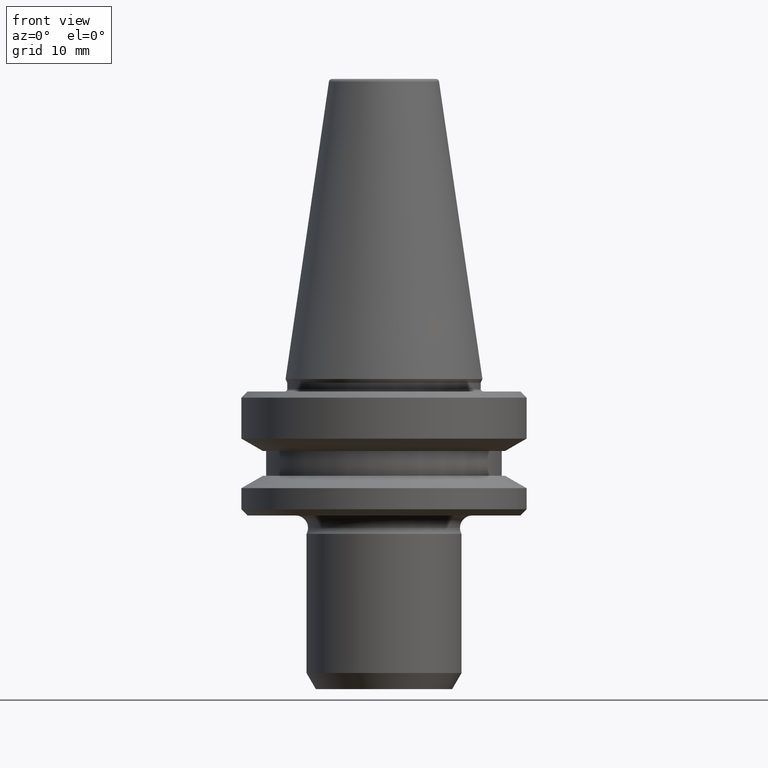
[diagram: clean part render]
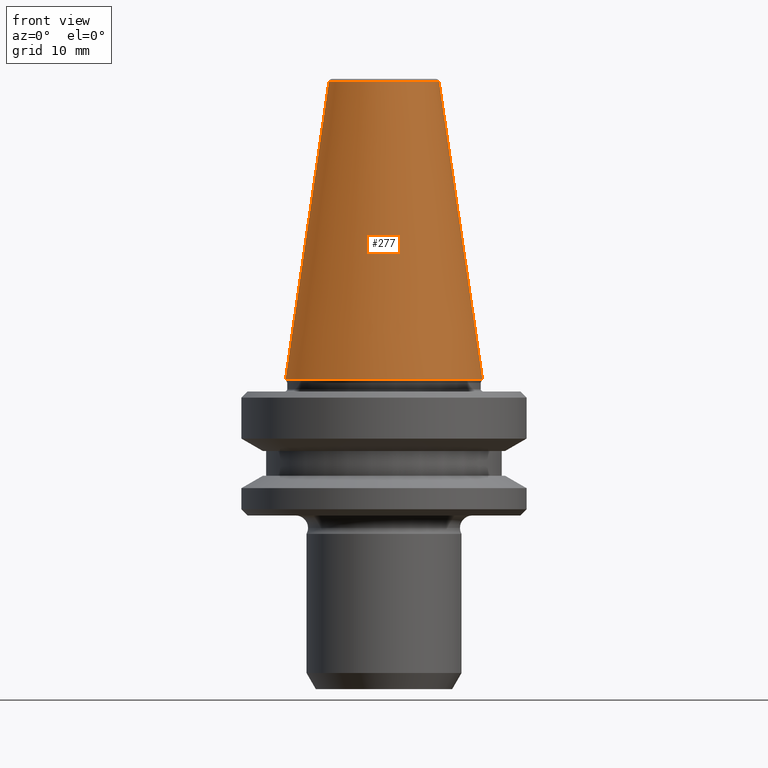
[diagram: same view with one face highlighted and labeled with its STEP entity id]
A machine part, front view. The second image highlights one B-rep face of the part: STEP entity #277.
In plain terms, the highlighted conical surface has half-angle 8.297 deg.
Its self-contained STEP definition (entity closure, byte-faithful):
#2 = DIRECTION ( 'NONE',  ( 1.000000000000000000, 0.0000000000000000000, 0.0000000000000000000 ) ) ;
#10 = EDGE_LOOP ( 'NONE', ( #85, #122, #961, #152 ) ) ;
#39 = VERTEX_POINT ( 'NONE', #145 ) ;
#60 = VERTEX_POINT ( 'NONE', #555 ) ;
#71 = CARTESIAN_POINT ( 'NONE',  ( -15.87499999999997200, 0.0000000000000000000, 1.665334536937734800E-013 ) ) ;
#79 = DIRECTION ( 'NONE',  ( -0.0000000000000000000, -0.0000000000000000000, 1.000000000000000000 ) ) ;
#85 = ORIENTED_EDGE ( 'NONE', *, *, #249, .F. ) ;
#122 = ORIENTED_EDGE ( 'NONE', *, *, #1012, .F. ) ;
#142 = EDGE_CURVE ( 'NONE', #306, #39, #735, .T. ) ;
#145 = CARTESIAN_POINT ( 'NONE',  ( 15.87499999999997200, 0.0000000000000000000, 1.665334536937734800E-013 ) ) ;
#152 = ORIENTED_EDGE ( 'NONE', *, *, #142, .T. ) ;
#180 = EDGE_CURVE ( 'NONE', #60, #306, #765, .T. ) ;
#249 = EDGE_CURVE ( 'NONE', #447, #39, #833, .T. ) ;
#277 = ADVANCED_FACE ( 'NONE', ( #656 ), #958, .T. ) ;
#306 = VERTEX_POINT ( 'NONE', #664 ) ;
#344 = AXIS2_PLACEMENT_3D ( 'NONE', #462, #1019, #941 ) ;
#351 = DIRECTION ( 'NONE',  ( -0.0000000000000000000, -0.0000000000000000000, 1.000000000000000000 ) ) ;
#412 = AXIS2_PLACEMENT_3D ( 'NONE', #742, #79, #476 ) ;
#447 = VERTEX_POINT ( 'NONE', #720 ) ;
#452 = CARTESIAN_POINT ( 'NONE',  ( 0.0000000000000000000, 0.0000000000000000000, 47.97215411344135600 ) ) ;
#462 = CARTESIAN_POINT ( 'NONE',  ( 0.0000000000000000000, 0.0000000000000000000, 1.665334536937734800E-013 ) ) ;
#476 = DIRECTION ( 'NONE',  ( 1.000000000000000000, 0.0000000000000000000, 0.0000000000000000000 ) ) ;
#550 = VECTOR ( 'NONE', #945, 1000.000000000000200 ) ;
#555 = CARTESIAN_POINT ( 'NONE',  ( -8.878994820583352900, 0.0000000000000000000, 47.97215411344135600 ) ) ;
#650 = CIRCLE ( 'NONE', #878, 8.878994820583352900 ) ;
#656 = FACE_OUTER_BOUND ( 'NONE', #10, .T. ) ;
#664 = CARTESIAN_POINT ( 'NONE',  ( -15.87499999999997200, 1.944126793646419700E-015, 1.665334536937734800E-013 ) ) ;
#720 = CARTESIAN_POINT ( 'NONE',  ( 8.878994820583352900, 1.515745026156876300E-015, 47.97215411344135600 ) ) ;
#735 = CIRCLE ( 'NONE', #412, 15.87499999999997200 ) ;
#742 = CARTESIAN_POINT ( 'NONE',  ( 0.0000000000000000000, 0.0000000000000000000, 1.665334536937734800E-013 ) ) ;
#765 = LINE ( 'NONE', #71, #921 ) ;
#806 = DIRECTION ( 'NONE',  ( -0.1443082268835142200, 0.0000000000000000000, -0.9895327865481446900 ) ) ;
#833 = LINE ( 'NONE', #1028, #550 ) ;
#878 = AXIS2_PLACEMENT_3D ( 'NONE', #452, #351, #2 ) ;
#921 = VECTOR ( 'NONE', #806, 1000.000000000000200 ) ;
#941 = DIRECTION ( 'NONE',  ( -1.000000000000000000, 0.0000000000000000000, 0.0000000000000000000 ) ) ;
#945 = DIRECTION ( 'NONE',  ( 0.1443082268835142200, 1.767266081435256700E-017, -0.9895327865481446900 ) ) ;
#958 = CONICAL_SURFACE ( 'NONE', #344, 15.87499999999997200, 0.1448138461595665200 ) ;
#961 = ORIENTED_EDGE ( 'NONE', *, *, #180, .T. ) ;
#1012 = EDGE_CURVE ( 'NONE', #60, #447, #650, .T. ) ;
#1019 = DIRECTION ( 'NONE',  ( 0.0000000000000000000, 0.0000000000000000000, -1.000000000000000000 ) ) ;
#1028 = CARTESIAN_POINT ( 'NONE',  ( 15.87499999999997200, 1.944126793646419700E-015, 1.665334536937734800E-013 ) ) ;